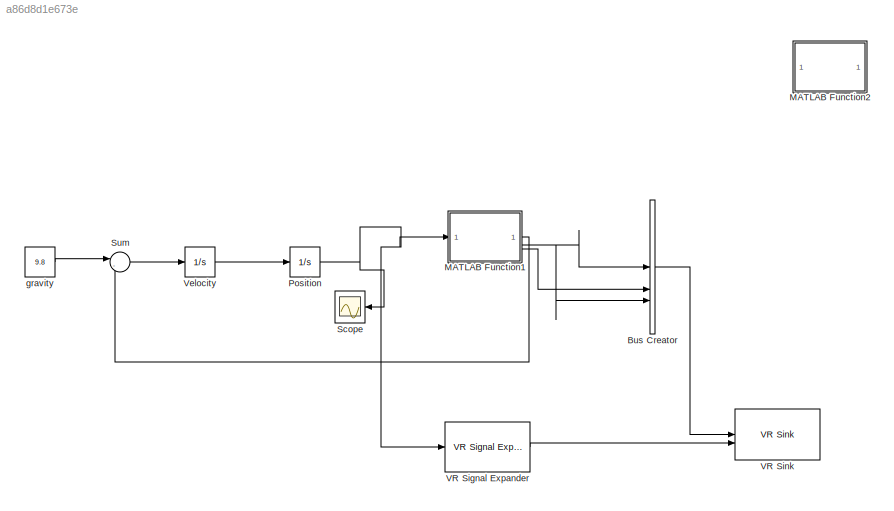
MODEL slx_a86d8d1e673e
KIND model
CONFIG AbsTol = auto
CONFIG EnableMultiTasking = off
CONFIG FixedStep = auto
CONFIG MaxStep = auto
CONFIG MinStep = auto
CONFIG RelTol = 1e-3
CONFIG SampleTimeConstraint = Unconstrained
CONFIG SolverName = VariableStepAuto
CONFIG StartTime = 0.0
CONFIG StopTime = 20.0
BLOCK [BusCreator] Bus Creator
  DisplayOption = bar
  InheritFromInputs = on
  Inputs = 3
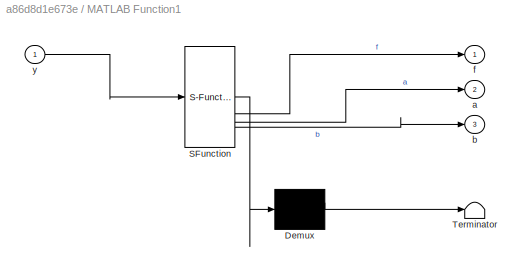
BLOCK [SubSystem] MATLAB Function1
  ErrorFcn = Stateflow.Translate.translate
  LibrarySourceBlock = simulink/User-Defined\nFunctions/MATLAB Function
  PermitHierarchicalResolution = ExplicitOnly
  SFBlockType = MATLAB Function
  TreatAsAtomicUnit = on
BLOCK [Demux] MATLAB Function1/ Demux 
  Outputs = 1
BLOCK [S-Function] MATLAB Function1/ SFunction 
  EnableBusSupport = on
  FunctionName = sf_sfun
  PortCounts = [1 4]
  SFcnIsStateOwnerBlock = off
  SFunctionDeploymentMode = off
  Tag = Stateflow S-Function 1
BLOCK [Terminator] MATLAB Function1/ Terminator 
BLOCK [Outport] MATLAB Function1/a
  Port = 2
BLOCK [Outport] MATLAB Function1/b
  Port = 3
BLOCK [Outport] MATLAB Function1/f
BLOCK [Inport] MATLAB Function1/y
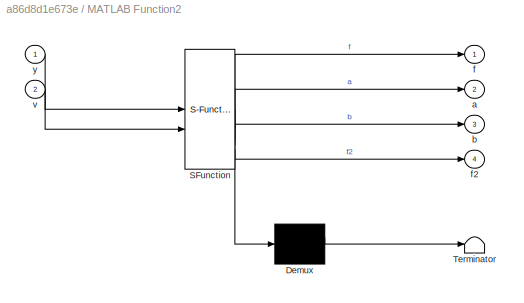
BLOCK [SubSystem] MATLAB Function2
  ErrorFcn = Stateflow.Translate.translate
  LibrarySourceBlock = simulink/User-Defined\nFunctions/MATLAB Function
  PermitHierarchicalResolution = ExplicitOnly
  SFBlockType = MATLAB Function
  TreatAsAtomicUnit = on
BLOCK [Demux] MATLAB Function2/ Demux 
  Outputs = 1
BLOCK [S-Function] MATLAB Function2/ SFunction 
  EnableBusSupport = on
  FunctionName = sf_sfun
  PortCounts = [2 5]
  SFcnIsStateOwnerBlock = off
  SFunctionDeploymentMode = off
  Tag = Stateflow S-Function 3
BLOCK [Terminator] MATLAB Function2/ Terminator 
BLOCK [Outport] MATLAB Function2/a
  Port = 2
BLOCK [Outport] MATLAB Function2/b
  Port = 3
BLOCK [Outport] MATLAB Function2/f
BLOCK [Outport] MATLAB Function2/f2
  Port = 4
BLOCK [Inport] MATLAB Function2/v
  Port = 2
BLOCK [Inport] MATLAB Function2/y
BLOCK [Integrator] Position
  InitialCondition = 20
BLOCK [Scope] Scope
  Floating = off
  NumInputPorts = 1
  ScopeSpecificationString = Simulink.scopes.TimeScopeBlockCfg('CurrentConfiguration', extmgr.ConfigurationSet(extmgr.Configuration('Core','General UI',true),extmgr.Configuration('Core','Source UI',true),extmgr.Configuration('Sources','WiredSimulink',true),extmgr.Configuration('Visuals','Time Domain',true,'SerializedDisplays',{struct('MinYLimReal','-1.80087','MaxYLimReal','22.48795','YLabelReal','','MinYLimMag','0.00000','Max...<+1332ch>
BLOCK [Sum] Sum
  Inputs = |-+
BLOCK [Reference] VR Signal Expander  REF=vrlib/VR Signal Expander
  SourceBlock = vrlib/VR Signal Expander
  SourceType = VR Signal Expander
BLOCK [Reference] VR Sink  REF=vrlib/VR Sink
  InstantiateOnLoad = on
  SourceBlock = vrlib/VR Sink
  SourceType = Virtual Reality Sink
BLOCK [Integrator] Velocity
BLOCK [Constant] gravity
  Value = 9.8
LINE Bus Creator:1 -> VR Sink:1
LINE MATLAB Function1:1 -> Sum:2
NET MATLAB Function1:2 -> Bus Creator:1, Bus Creator:3
LINE MATLAB Function1:3 -> Bus Creator:2
NET Position:1 -> MATLAB Function1:1, Scope:1, VR Signal Expander:1
LINE Sum:1 -> Velocity:1
LINE VR Signal Expander:1 -> VR Sink:2
LINE Velocity:1 -> Position:1
LINE gravity:1 -> Sum:1
note: NET lines group one-source signal fan-out (src -> all destinations, sorted); 1:1 wires keep LINE
CHART MATLAB Function1 states=1 transitions=1
  STATE_LABEL 'eML_blk_kernel()'
  STATE_LABEL 'SCRIPT:\nfunction [f, a, b] = fcn(y)\n%#eml\n\nif y<1e-4;\n    y=1e-4\nend\n\nif y<1.5\n    f=500*(1.5-y)\n    a=sqrt(1.5^3/y);\n    b=y;\nelse \n    f=0;\n    a=1.5;\n    b=1.5\nend\n'
CHART MATLAB Function2 states=1 transitions=1
  STATE_LABEL 'eML_blk_kernel()'
  STATE_LABEL 'SCRIPT:\nfunction [f, a, b, f2] = fcn(y, v)\n%#eml\nf2=0;\nif y<1e-4\n y=1e-4;\nend\n\nif y<1.5\n    f1=500*(1.5-y);\n    if v<0\n        f2=-10*v;\n    end\n    a=sqrt(1.5^3/y);\n    b=y;\nelse \n    f1=0;\n    a=1.5;\n    b=1.5;\nend\nf=f1+f2;'
CHART  states=0 transitions=0
CHART  states=0 transitions=0
